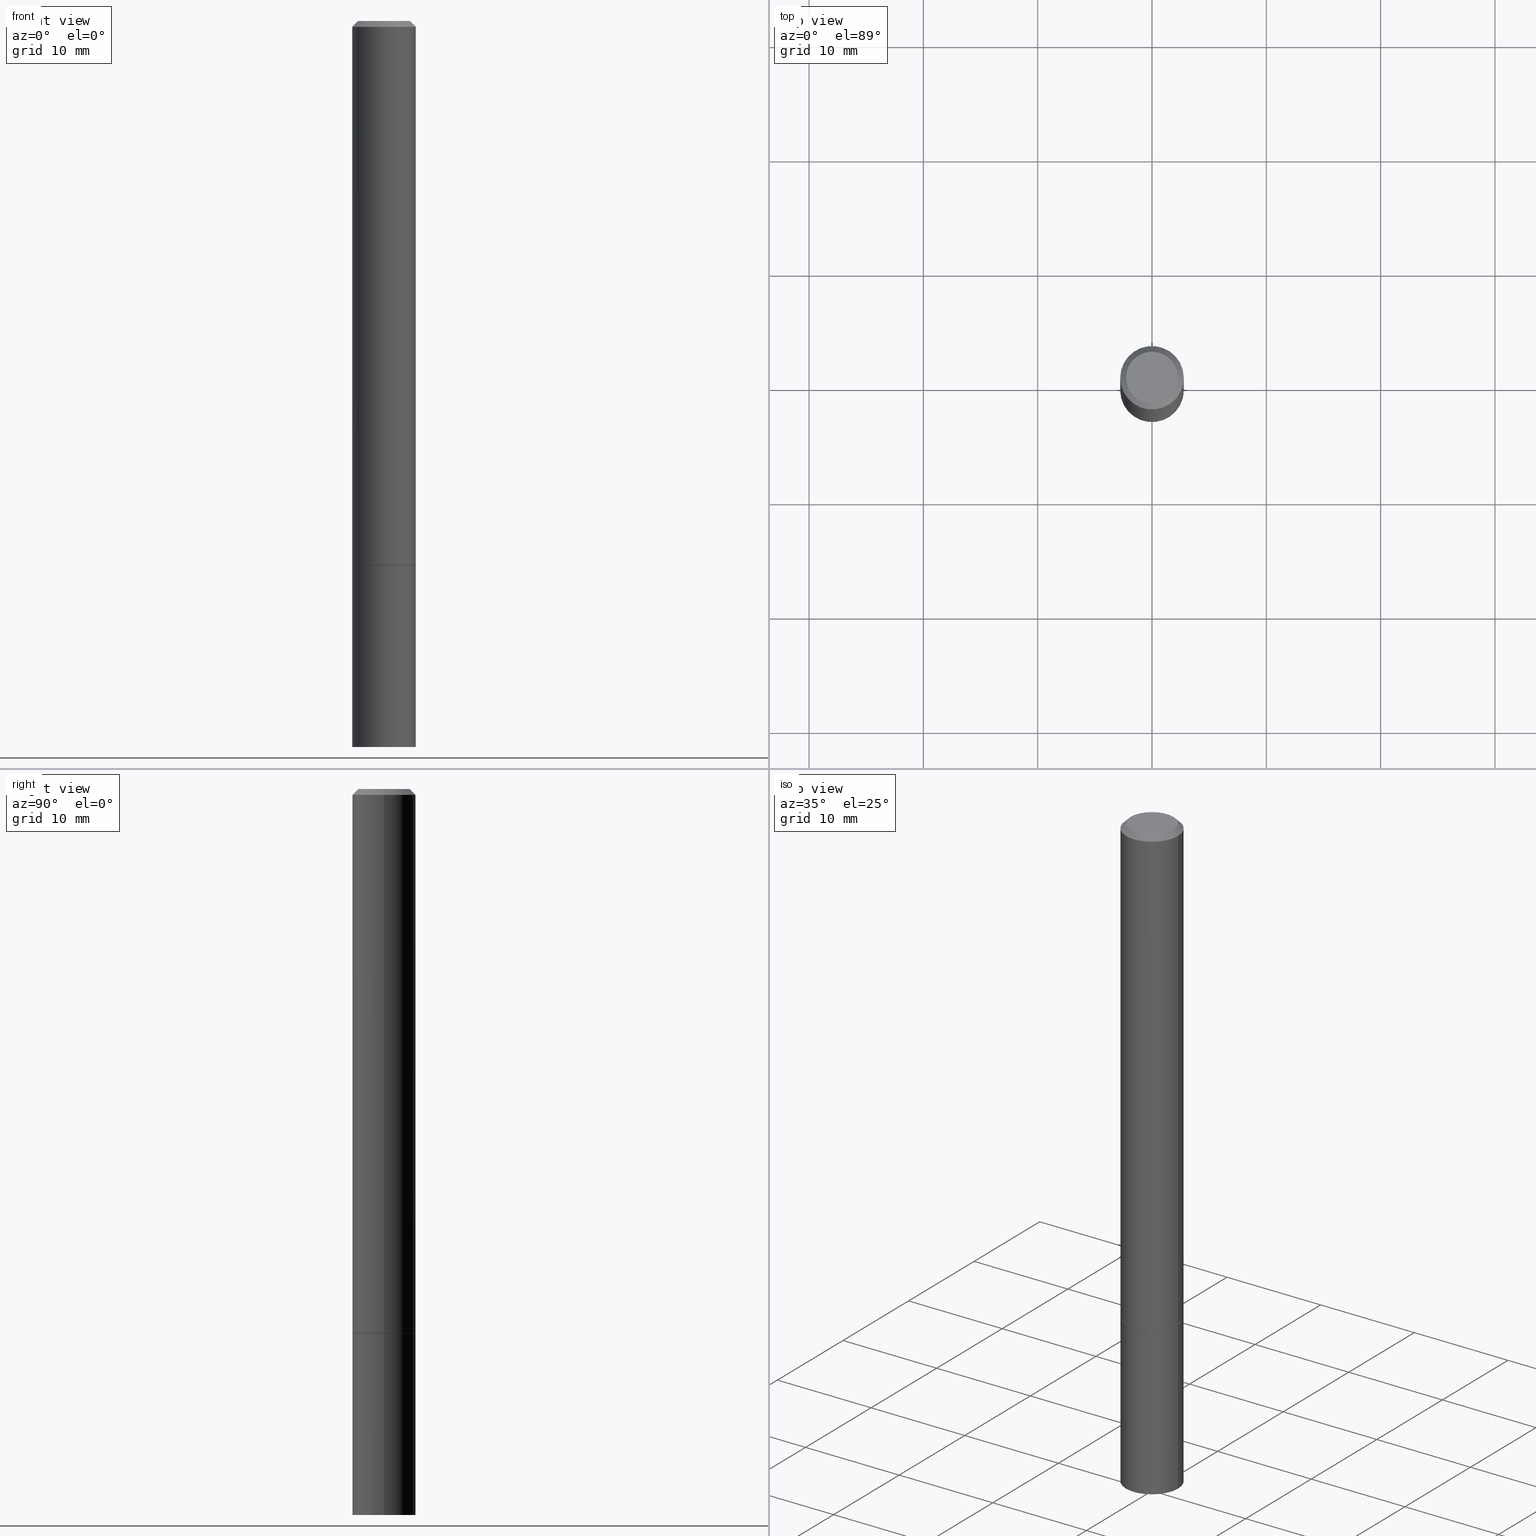
[diagram: canonical four-view strip — front | top / right | iso, engineering-drawing reading convention]
A machine part, canonical four-view strip (front | top / right | iso — engineering-drawing reading convention). The complete STEP part file that produces these views, byte-faithful:
ISO-10303-21;
HEADER;
FILE_DESCRIPTION (( 'STEP AP203' ),
    '1' );
FILE_NAME ('39027.STEP',
    '2023-03-21T20:44:31',
    ( '' ),
    ( '' ),
    'SwSTEP 2.0',
    'SolidWorks 2022',
    '' );
FILE_SCHEMA (( 'CONFIG_CONTROL_DESIGN' ));
ENDSEC;

DATA;
#1 = DIRECTION ( 'NONE',  ( 2.438088387897960049E-29, -3.491481338843145188E-15, -1.000000000000000000 ) ) ;
#2 = ORIENTED_EDGE ( 'NONE', *, *, #109, .F. ) ;
#3 = EDGE_LOOP ( 'NONE', ( #303, #199, #153, #222 ) ) ;
#4 = ORIENTED_EDGE ( 'NONE', *, *, #80, .F. ) ;
#5 = PLANE ( 'NONE',  #42 ) ;
#6 = DATE_TIME_ROLE ( 'creation_date' ) ;
#7 = DIRECTION ( 'NONE',  ( -1.000000000000000000, 6.982962677686265922E-15, -4.876176775795935793E-29 ) ) ;
#8 = DIRECTION ( 'NONE',  ( 0.000000000000000000, 0.000000000000000000, 1.000000000000000000 ) ) ;
#9 = ORIENTED_EDGE ( 'NONE', *, *, #284, .F. ) ;
#10 = DIRECTION ( 'NONE',  ( -2.445468806185136597E-29, 3.491481338843145583E-15, 1.000000000000000000 ) ) ;
#11 = SECURITY_CLASSIFICATION_LEVEL ( 'unclassified' ) ;
#12 = VERTEX_POINT ( 'NONE', #28 ) ;
#13 = PRODUCT_DEFINITION ( 'UNKNOWN', '', #187, #181 ) ;
#14 = DATE_AND_TIME ( #73, #291 ) ;
#15 = CARTESIAN_POINT ( 'NONE',  ( -0.1093999999999999972, -2.529099074962906760E-15, -1.874000000000000110 ) ) ;
#16 = COORDINATED_UNIVERSAL_TIME_OFFSET ( 5, 0, .BEHIND. ) ;
#17 = CARTESIAN_POINT ( 'NONE',  ( 6.113672015462842613E-29, -8.728703347107864943E-15, -2.500000000000000000 ) ) ;
#18 = AXIS2_PLACEMENT_3D ( 'NONE', #233, #259, #97 ) ;
#19 = EDGE_CURVE ( 'NONE', #190, #372, #164, .T. ) ;
#20 = CARTESIAN_POINT ( 'NONE',  ( 0.1093999999999999695, -9.479241828064070897E-15, -2.500000000000000000 ) ) ;
#21 = PRODUCT ( '39027', '39027', '', ( #256 ) ) ;
#22 = CARTESIAN_POINT ( 'NONE',  ( 4.582808542790945516E-29, -6.543036028992054911E-15, -1.874000000000000110 ) ) ;
#23 = ADVANCED_FACE ( 'NONE', ( #280 ), #173, .F. ) ;
#24 = AXIS2_PLACEMENT_3D ( 'NONE', #212, #138, #55 ) ;
#25 = DIRECTION ( 'NONE',  ( 0.9986295347545742773, -7.033825938271997912E-15, -0.05233595624293643084 ) ) ;
#26 = DIRECTION ( 'NONE',  ( 2.438088387897960049E-29, -3.491481338843145188E-15, -1.000000000000000000 ) ) ;
#27 = EDGE_CURVE ( 'NONE', #190, #116, #317, .T. ) ;
#28 = CARTESIAN_POINT ( 'NONE',  ( -0.1083999999999999964, -5.771000730418727335E-15, -1.875000000000000000 ) ) ;
#29 = ORIENTED_EDGE ( 'NONE', *, *, #34, .T. ) ;
#30 = EDGE_LOOP ( 'NONE', ( #69, #9, #62, #113 ) ) ;
#31 = VERTEX_POINT ( 'NONE', #309 ) ;
#32 = FACE_OUTER_BOUND ( 'NONE', #151, .T. ) ;
#33 = ORIENTED_EDGE ( 'NONE', *, *, #247, .T. ) ;
#34 = EDGE_CURVE ( 'NONE', #116, #365, #91, .T. ) ;
#35 = AXIS2_PLACEMENT_3D ( 'NONE', #339, #158, #119 ) ;
#36 = DIRECTION ( 'NONE',  ( 1.000000000000000000, -6.982962677686266711E-15, 4.876176775795935793E-29 ) ) ;
#37 = DIRECTION ( 'NONE',  ( 1.000000000000000000, -6.982962677686269866E-15, 0.000000000000000000 ) ) ;
#38 = ORIENTED_EDGE ( 'NONE', *, *, #115, .F. ) ;
#39 = DIRECTION ( 'NONE',  ( -0.7071067811865232589, 7.493145998870265808E-15, 0.7071067811865715536 ) ) ;
#40 = CC_DESIGN_PERSON_AND_ORGANIZATION_ASSIGNMENT ( #47, #228, ( #187 ) ) ;
#41 = APPROVAL_DATE_TIME ( #260, #198 ) ;
#42 = AXIS2_PLACEMENT_3D ( 'NONE', #246, #1, #7 ) ;
#43 = CARTESIAN_POINT ( 'NONE',  ( 0.000000000000000000, 0.000000000000000000, 0.000000000000000000 ) ) ;
#44 = CONICAL_SURFACE ( 'NONE', #54, 751.2258538476739886, 1.518436449235074148 ) ;
#45 = DATE_AND_TIME ( #348, #235 ) ;
#46 = DIRECTION ( 'NONE',  ( 1.000000000000000000, -6.982962677686269866E-15, 0.000000000000000000 ) ) ;
#47 = PERSON_AND_ORGANIZATION ( #88, #114 ) ;
#48 = CARTESIAN_POINT ( 'NONE',  ( 0.1093999999999997752, -8.203681077330669845E-16, -0.02000000000000002470 ) ) ;
#49 = CC_DESIGN_DATE_AND_TIME_ASSIGNMENT ( #14, #204, ( #330 ) ) ;
#50 = CARTESIAN_POINT ( 'NONE',  ( 0.08939999999999979907, -7.168483143669202998E-16, 4.689111625122773935E-30 ) ) ;
#51 = DIRECTION ( 'NONE',  ( 1.000000000000000000, -6.982962677686265922E-15, 4.876176775795935793E-29 ) ) ;
#52 = ADVANCED_FACE ( 'NONE', ( #87 ), #224, .T. ) ;
#53 = VECTOR ( 'NONE', #172, 39.37007874015748143 ) ;
#54 = AXIS2_PLACEMENT_3D ( 'NONE', #170, #209, #163 ) ;
#55 = DIRECTION ( 'NONE',  ( 1.000000000000000000, -6.982962677686268288E-15, 0.000000000000000000 ) ) ;
#56 = AXIS2_PLACEMENT_3D ( 'NONE', #205, #293, #298 ) ;
#57 = CC_DESIGN_APPROVAL ( #198, ( #187 ) ) ;
#58 = EDGE_LOOP ( 'NONE', ( #278, #378 ) ) ;
#59 = APPLICATION_CONTEXT ( 'configuration controlled 3d designs of mechanical parts and assemblies' ) ;
#60 = ORIENTED_EDGE ( 'NONE', *, *, #34, .F. ) ;
#61 = CC_DESIGN_PERSON_AND_ORGANIZATION_ASSIGNMENT ( #128, #281, ( #330 ) ) ;
#62 = ORIENTED_EDGE ( 'NONE', *, *, #80, .T. ) ;
#63 = FACE_OUTER_BOUND ( 'NONE', #110, .T. ) ;
#64 = ORIENTED_EDGE ( 'NONE', *, *, #82, .F. ) ;
#65 = CIRCLE ( 'NONE', #24, 0.1083999999999999964 ) ;
#66 = CONICAL_SURFACE ( 'NONE', #180, 0.1083999999999999964, 0.7853981633974141952 ) ;
#67 = DIRECTION ( 'NONE',  ( -2.445468806185136597E-29, 3.491481338843145583E-15, 1.000000000000000000 ) ) ;
#68 = SHAPE_DEFINITION_REPRESENTATION ( #328, #106 ) ;
#69 = ORIENTED_EDGE ( 'NONE', *, *, #157, .F. ) ;
#70 = EDGE_CURVE ( 'NONE', #365, #116, #321, .T. ) ;
#71 = CARTESIAN_POINT ( 'NONE',  ( -0.1083999999999999964, -5.776299184766949737E-15, -1.875000000000000000 ) ) ;
#72 = FACE_OUTER_BOUND ( 'NONE', #125, .T. ) ;
#73 = CALENDAR_DATE ( 2023, 21, 3 ) ;
#74 = AXIS2_PLACEMENT_3D ( 'NONE', #210, #331, #79 ) ;
#75 = APPROVAL_ROLE ( '' ) ;
#76 = APPLICATION_CONTEXT ( 'configuration controlled 3d designs of mechanical parts and assemblies' ) ;
#77 = ADVANCED_FACE ( 'NONE', ( #283 ), #5, .F. ) ;
#78 = EDGE_CURVE ( 'NONE', #86, #219, #305, .T. ) ;
#79 = DIRECTION ( 'NONE',  ( 1.000000000000000000, -6.982962677686267499E-15, 4.876176775795935232E-29 ) ) ;
#80 = EDGE_CURVE ( 'NONE', #338, #219, #146, .T. ) ;
#81 = DIRECTION ( 'NONE',  ( 1.000000000000000000, -6.982962677686268288E-15, 0.000000000000000000 ) ) ;
#82 = EDGE_CURVE ( 'NONE', #31, #190, #185, .T. ) ;
#83 = CARTESIAN_POINT ( 'NONE',  ( 4.585254011597131119E-29, -6.546527510330898707E-15, -1.875000000000000000 ) ) ;
#84 = VECTOR ( 'NONE', #295, 39.37007874015748143 ) ;
#85 = CARTESIAN_POINT ( 'NONE',  ( 7.639361169389233258E-16, 0.1093999999999934608, -1.875000000000000444 ) ) ;
#86 = VERTEX_POINT ( 'NONE', #239 ) ;
#87 = FACE_OUTER_BOUND ( 'NONE', #30, .T. ) ;
#88 = PERSON ( 'UNSPECIFIED', 'UNSPECIFIED', 'UNSPECIFIED', ('UNSPECIFIED'), ('UNSPECIFIED'), ('UNSPECIFIED') ) ;
#89 = ORIENTED_EDGE ( 'NONE', *, *, #374, .F. ) ;
#90 = DATE_AND_TIME ( #377, #313 ) ;
#91 = CIRCLE ( 'NONE', #268, 0.1093999999999999972 ) ;
#92 = CARTESIAN_POINT ( 'NONE',  ( 0.1093999999999999001, -7.639361169388768816E-16, 5.334537392720749004E-30 ) ) ;
#93 = PERSON_AND_ORGANIZATION_ROLE ( 'design_owner' ) ;
#94 = DIRECTION ( 'NONE',  ( 1.000000000000000000, -6.982962677686268288E-15, 0.000000000000000000 ) ) ;
#95 = DIRECTION ( 'NONE',  ( 1.000000000000000000, -6.982962677686266711E-15, 4.876176775795935793E-29 ) ) ;
#96 = PERSON_AND_ORGANIZATION_ROLE ( 'creator' ) ;
#97 = DIRECTION ( 'NONE',  ( 1.000000000000000000, -6.982962677686266711E-15, 4.876176775795935793E-29 ) ) ;
#98 = EDGE_CURVE ( 'NONE', #149, #219, #135, .T. ) ;
#99 = APPROVAL_STATUS ( 'not_yet_approved' ) ;
#100 = CYLINDRICAL_SURFACE ( 'NONE', #18, 0.1093999999999999972 ) ;
#101 = CARTESIAN_POINT ( 'NONE',  ( -0.1093999999999997752, 6.941064901620129917E-16, -0.02000000000000002470 ) ) ;
#102 = AXIS2_PLACEMENT_3D ( 'NONE', #355, #383, #81 ) ;
#103 = AXIS2_PLACEMENT_3D ( 'NONE', #121, #67, #269 ) ;
#104 = AXIS2_PLACEMENT_3D ( 'NONE', #310, #150, #36 ) ;
#105 = ADVANCED_FACE ( 'NONE', ( #72 ), #130, .T. ) ;
#106 = ADVANCED_BREP_SHAPE_REPRESENTATION ( '39027', ( #311, #178, #276 ), #337 ) ;
#107 = LINE ( 'NONE', #137, #362 ) ;
#108 = AXIS2_PLACEMENT_3D ( 'NONE', #254, #202, #292 ) ;
#109 = EDGE_CURVE ( 'NONE', #368, #12, #186, .T. ) ;
#110 = EDGE_LOOP ( 'NONE', ( #29, #279 ) ) ;
#111 = CARTESIAN_POINT ( 'NONE',  ( -0.1093999999999999972, -6.860281675797831847E-15, -1.875000000000000000 ) ) ;
#112 = CARTESIAN_POINT ( 'NONE',  ( 2.905236764192702358E-20, -8.708685249406429483E-15, -2.494266588946436158 ) ) ;
#113 = ORIENTED_EDGE ( 'NONE', *, *, #332, .T. ) ;
#114 = ORGANIZATION ( 'UNSPECIFIED', 'UNSPECIFIED', '' ) ;
#115 = EDGE_CURVE ( 'NONE', #154, #86, #323, .T. ) ;
#116 = VERTEX_POINT ( 'NONE', #382 ) ;
#117 = CARTESIAN_POINT ( 'NONE',  ( 6.113672015462842613E-29, -8.728703347107864943E-15, -2.500000000000000000 ) ) ;
#118 = ORIENTED_EDGE ( 'NONE', *, *, #115, .T. ) ;
#119 = DIRECTION ( 'NONE',  ( -1.000000000000000000, 6.982962677686266711E-15, 0.000000000000000000 ) ) ;
#120 = VERTEX_POINT ( 'NONE', #50 ) ;
#121 = CARTESIAN_POINT ( 'NONE',  ( 4.585254011597131119E-29, -6.546527510330898707E-15, -1.875000000000000000 ) ) ;
#122 = CALENDAR_DATE ( 2023, 21, 3 ) ;
#123 = ORIENTED_EDGE ( 'NONE', *, *, #182, .F. ) ;
#124 = VECTOR ( 'NONE', #214, 39.37007874015748143 ) ;
#125 = EDGE_LOOP ( 'NONE', ( #218, #249, #118, #308 ) ) ;
#126 = APPROVAL_PERSON_ORGANIZATION ( #169, #299, #314 ) ;
#127 = CARTESIAN_POINT ( 'NONE',  ( -2.905236751993399867E-20, -8.708685249406429483E-15, -2.494266588946436158 ) ) ;
#128 = PERSON_AND_ORGANIZATION ( #88, #114 ) ;
#129 = ORIENTED_EDGE ( 'NONE', *, *, #27, .T. ) ;
#130 = CYLINDRICAL_SURFACE ( 'NONE', #357, 0.1093999999999999001 ) ;
#131 = CC_DESIGN_DATE_AND_TIME_ASSIGNMENT ( #45, #6, ( #13 ) ) ;
#132 = DIRECTION ( 'NONE',  ( -2.445468806185136597E-29, 3.491481338843145583E-15, 1.000000000000000000 ) ) ;
#133 = ADVANCED_FACE ( 'NONE', ( #261 ), #257, .T. ) ;
#134 = VECTOR ( 'NONE', #168, 39.37007874015748143 ) ;
#135 = LINE ( 'NONE', #250, #215 ) ;
#136 = EDGE_CURVE ( 'NONE', #372, #190, #232, .T. ) ;
#137 = CARTESIAN_POINT ( 'NONE',  ( 0.1083999999999999964, -7.303480664592089476E-15, -1.875000000000000000 ) ) ;
#138 = DIRECTION ( 'NONE',  ( -2.445468806185136597E-29, 3.491481338843145583E-15, 1.000000000000000000 ) ) ;
#139 = AXIS2_PLACEMENT_3D ( 'NONE', #296, #346, #354 ) ;
#140 = APPROVAL_PERSON_ORGANIZATION ( #294, #345, #75 ) ;
#141 = EDGE_CURVE ( 'NONE', #31, #372, #325, .T. ) ;
#142 =( LENGTH_UNIT ( ) NAMED_UNIT ( * ) SI_UNIT ( $, .METRE. ) );
#143 = DIMENSIONAL_EXPONENTS ( 1.000000000000000000, 0.000000000000000000, 0.000000000000000000, 0.000000000000000000, 0.000000000000000000, 0.000000000000000000, 0.000000000000000000 ) ;
#144 = ADVANCED_FACE ( 'NONE', ( #376 ), #100, .T. ) ;
#145 = CC_DESIGN_APPROVAL ( #299, ( #330 ) ) ;
#146 = LINE ( 'NONE', #333, #124 ) ;
#147 = DIRECTION ( 'NONE',  ( -2.445468806185136877E-29, 3.491481338843145188E-15, 1.000000000000000000 ) ) ;
#148 = ORIENTED_EDGE ( 'NONE', *, *, #136, .T. ) ;
#149 = VERTEX_POINT ( 'NONE', #15 ) ;
#150 = DIRECTION ( 'NONE',  ( -2.445468806185136597E-29, 3.491481338843145583E-15, 1.000000000000000000 ) ) ;
#151 = EDGE_LOOP ( 'NONE', ( #213, #196, #60, #273 ) ) ;
#152 = CIRCLE ( 'NONE', #297, 0.1093999999999997752 ) ;
#153 = ORIENTED_EDGE ( 'NONE', *, *, #379, .F. ) ;
#154 = VERTEX_POINT ( 'NONE', #327 ) ;
#155 = APPLICATION_PROTOCOL_DEFINITION ( 'international standard', 'config_control_design', 1994, #76 ) ;
#156 = ORIENTED_EDGE ( 'NONE', *, *, #70, .F. ) ;
#157 = EDGE_CURVE ( 'NONE', #120, #86, #200, .T. ) ;
#158 = DIRECTION ( 'NONE',  ( 2.445468806185136597E-29, -3.491481338843145583E-15, -1.000000000000000000 ) ) ;
#159 = APPLICATION_PROTOCOL_DEFINITION ( 'international standard', 'config_control_design', 1994, #59 ) ;
#160 = ORIENTED_EDGE ( 'NONE', *, *, #141, .F. ) ;
#161 = CARTESIAN_POINT ( 'NONE',  ( 4.582808542790945516E-29, -6.543036028992054911E-15, -1.874000000000000110 ) ) ;
#162 = DIRECTION ( 'NONE',  ( 1.000000000000000000, 0.000000000000000000, 0.000000000000000000 ) ) ;
#163 = DIRECTION ( 'NONE',  ( -1.000000000000000000, 6.982962677686266711E-15, 0.000000000000000000 ) ) ;
#164 = CIRCLE ( 'NONE', #253, 0.1093999999999999972 ) ;
#165 = VECTOR ( 'NONE', #267, 39.37007874015748143 ) ;
#166 = COORDINATED_UNIVERSAL_TIME_OFFSET ( 5, 0, .BEHIND. ) ;
#167 = EDGE_CURVE ( 'NONE', #120, #338, #207, .T. ) ;
#168 = DIRECTION ( 'NONE',  ( -0.9986295347545742773, 6.790662755453668466E-15, -0.05233595624293643084 ) ) ;
#169 = PERSON_AND_ORGANIZATION ( #88, #114 ) ;
#170 = CARTESIAN_POINT ( 'NONE',  ( 1.023779505936860528E-27, -1.461685804794515337E-13, -41.86434532910391937 ) ) ;
#171 = EDGE_CURVE ( 'NONE', #12, #149, #174, .T. ) ;
#172 = DIRECTION ( 'NONE',  ( 0.7071067811865466846, -7.319954787623252890E-15, -0.7071067811865483499 ) ) ;
#173 = CONICAL_SURFACE ( 'NONE', #301, 751.2258538476739886, 1.518436449235074148 ) ;
#174 = LINE ( 'NONE', #71, #329 ) ;
#175 = CC_DESIGN_PERSON_AND_ORGANIZATION_ASSIGNMENT ( #320, #93, ( #21 ) ) ;
#176 = CIRCLE ( 'NONE', #241, 0.1093999999999999972 ) ;
#177 = CARTESIAN_POINT ( 'NONE',  ( 4.585254011597131119E-29, -6.546527510330898707E-15, -1.875000000000000000 ) ) ;
#178 = MANIFOLD_SOLID_BREP ( 'Body-Move/Copy2[2]', #351 ) ;
#179 = CARTESIAN_POINT ( 'NONE',  ( -0.1093999999999999972, 7.773337529215495838E-16, -5.381314988738867416E-30 ) ) ;
#180 = AXIS2_PLACEMENT_3D ( 'NONE', #370, #242, #94 ) ;
#181 = DESIGN_CONTEXT ( 'detailed design', #76, 'design' ) ;
#182 = EDGE_CURVE ( 'NONE', #149, #154, #288, .T. ) ;
#183 = UNCERTAINTY_MEASURE_WITH_UNIT (LENGTH_MEASURE( 1.000000000000000082E-05 ), #364, 'distance_accuracy_value', 'NONE');
#184 = EDGE_LOOP ( 'NONE', ( #312, #191, #33, #123 ) ) ;
#185 = LINE ( 'NONE', #112, #381 ) ;
#186 = CIRCLE ( 'NONE', #56, 0.1083999999999999964 ) ;
#187 = PRODUCT_DEFINITION_FORMATION_WITH_SPECIFIED_SOURCE ( 'ANY', '', #21, .NOT_KNOWN. ) ;
#188 = ORIENTED_EDGE ( 'NONE', *, *, #304, .F. ) ;
#189 = ORIENTED_EDGE ( 'NONE', *, *, #78, .T. ) ;
#190 = VERTEX_POINT ( 'NONE', #20 ) ;
#191 = ORIENTED_EDGE ( 'NONE', *, *, #304, .T. ) ;
#192 = DIRECTION ( 'NONE',  ( -1.000000000000000000, 6.982962677686265922E-15, -4.876176775795935793E-29 ) ) ;
#193 = EDGE_LOOP ( 'NONE', ( #89, #148, #129, #156 ) ) ;
#194 = DIRECTION ( 'NONE',  ( 1.000000000000000000, -6.982962677686269866E-15, 0.000000000000000000 ) ) ;
#195 = PERSON_AND_ORGANIZATION ( #88, #114 ) ;
#196 = ORIENTED_EDGE ( 'NONE', *, *, #374, .T. ) ;
#197 = CC_DESIGN_SECURITY_CLASSIFICATION ( #330, ( #187 ) ) ;
#198 = APPROVAL ( #324, 'UNSPECIFIED' ) ;
#199 = ORIENTED_EDGE ( 'NONE', *, *, #171, .T. ) ;
#200 = LINE ( 'NONE', #48, #53 ) ;
#201 =( NAMED_UNIT ( * ) PLANE_ANGLE_UNIT ( ) SI_UNIT ( $, .RADIAN. ) );
#202 = DIRECTION ( 'NONE',  ( 2.445468806185136597E-29, -3.491481338843145583E-15, -1.000000000000000000 ) ) ;
#203 = DIRECTION ( 'NONE',  ( 1.000000000000000000, -6.982962677686266711E-15, 4.876176775795935793E-29 ) ) ;
#204 = DATE_TIME_ROLE ( 'classification_date' ) ;
#205 = CARTESIAN_POINT ( 'NONE',  ( 4.585254011597131119E-29, -6.546527510330898707E-15, -1.875000000000000000 ) ) ;
#206 = COORDINATED_UNIVERSAL_TIME_OFFSET ( 5, 0, .BEHIND. ) ;
#207 = CIRCLE ( 'NONE', #139, 0.08939999999999979907 ) ;
#208 = LOCAL_TIME ( 16, 44, 31.00000000000000000, #16 ) ;
#209 = DIRECTION ( 'NONE',  ( 2.445468806185136597E-29, -3.491481338843145583E-15, -1.000000000000000000 ) ) ;
#210 = CARTESIAN_POINT ( 'NONE',  ( 0.000000000000000000, 0.000000000000000000, 0.000000000000000000 ) ) ;
#211 = LINE ( 'NONE', #179, #165 ) ;
#212 = CARTESIAN_POINT ( 'NONE',  ( 4.585254011597131119E-29, -6.546527510330898707E-15, -1.875000000000000000 ) ) ;
#213 = ORIENTED_EDGE ( 'NONE', *, *, #19, .T. ) ;
#214 = DIRECTION ( 'NONE',  ( -0.7071067811865466846, 2.468850131082247989E-15, -0.7071067811865483499 ) ) ;
#215 = VECTOR ( 'NONE', #231, 39.37007874015748143 ) ;
#216 = AXIS2_PLACEMENT_3D ( 'NONE', #85, #26, #192 ) ;
#217 = DIRECTION ( 'NONE',  ( 1.000000000000000000, -6.982962677686269866E-15, 0.000000000000000000 ) ) ;
#218 = ORIENTED_EDGE ( 'NONE', *, *, #98, .F. ) ;
#219 = VERTEX_POINT ( 'NONE', #101 ) ;
#220 = DIRECTION ( 'NONE',  ( 2.445468806185136597E-29, -3.491481338843145583E-15, -1.000000000000000000 ) ) ;
#221 = ADVANCED_FACE ( 'NONE', ( #387 ), #385, .F. ) ;
#222 = ORIENTED_EDGE ( 'NONE', *, *, #247, .F. ) ;
#223 = CALENDAR_DATE ( 2023, 21, 3 ) ;
#224 = CONICAL_SURFACE ( 'NONE', #35, 0.1093999999999997752, 0.7853981633974471688 ) ;
#225 = DIRECTION ( 'NONE',  ( -2.445468806185136597E-29, 3.491481338843145583E-15, 1.000000000000000000 ) ) ;
#226 = PERSON_AND_ORGANIZATION_ROLE ( 'design_supplier' ) ;
#227 = ORIENTED_EDGE ( 'NONE', *, *, #379, .T. ) ;
#228 = PERSON_AND_ORGANIZATION_ROLE ( 'creator' ) ;
#229 = ORIENTED_EDGE ( 'NONE', *, *, #157, .T. ) ;
#230 = DIRECTION ( 'NONE',  ( -2.445468806185136597E-29, 3.491481338843145583E-15, 1.000000000000000000 ) ) ;
#231 = DIRECTION ( 'NONE',  ( -2.445468806185136877E-29, 3.491481338843145188E-15, 1.000000000000000000 ) ) ;
#232 = CIRCLE ( 'NONE', #341, 0.1093999999999999972 ) ;
#233 = CARTESIAN_POINT ( 'NONE',  ( 0.000000000000000000, 0.000000000000000000, 0.000000000000000000 ) ) ;
#234 = AXIS2_PLACEMENT_3D ( 'NONE', #336, #359, #306 ) ;
#235 = LOCAL_TIME ( 16, 44, 31.00000000000000000, #285 ) ;
#236 = CC_DESIGN_PERSON_AND_ORGANIZATION_ASSIGNMENT ( #347, #96, ( #13 ) ) ;
#237 = DIRECTION ( 'NONE',  ( 0.7071067811865232589, -2.468850131082003836E-15, 0.7071067811865715536 ) ) ;
#238 = CARTESIAN_POINT ( 'NONE',  ( 0.1083999999999999964, -7.303480664592089476E-15, -1.875000000000000000 ) ) ;
#239 = CARTESIAN_POINT ( 'NONE',  ( 0.1093999999999997752, -8.203681077330669845E-16, -0.02000000000000002470 ) ) ;
#240 = CONICAL_SURFACE ( 'NONE', #102, 0.1083999999999999964, 0.7853981633974141952 ) ;
#241 = AXIS2_PLACEMENT_3D ( 'NONE', #22, #386, #217 ) ;
#242 = DIRECTION ( 'NONE',  ( -2.445468806185136597E-29, 3.491481338843145583E-15, 1.000000000000000000 ) ) ;
#243 = ORIENTED_EDGE ( 'NONE', *, *, #167, .F. ) ;
#244 = EDGE_LOOP ( 'NONE', ( #243, #229, #189, #4 ) ) ;
#245 = DIRECTION ( 'NONE',  ( -2.445468806185136597E-29, 3.491481338843145583E-15, 1.000000000000000000 ) ) ;
#246 = CARTESIAN_POINT ( 'NONE',  ( 6.242768633851507782E-16, 0.08939999999999979907, -3.121384316925765724E-16 ) ) ;
#247 = EDGE_CURVE ( 'NONE', #368, #154, #107, .T. ) ;
#248 = APPROVAL_ROLE ( '' ) ;
#249 = ORIENTED_EDGE ( 'NONE', *, *, #182, .T. ) ;
#250 = CARTESIAN_POINT ( 'NONE',  ( -0.1093999999999999001, 7.773337529215488935E-16, -5.381314988738861811E-30 ) ) ;
#251 = APPROVAL_DATE_TIME ( #90, #345 ) ;
#252 = FACE_OUTER_BOUND ( 'NONE', #184, .T. ) ;
#253 = AXIS2_PLACEMENT_3D ( 'NONE', #117, #245, #194 ) ;
#254 = CARTESIAN_POINT ( 'NONE',  ( 4.890937612370279289E-31, -6.982962677686299005E-17, -0.02000000000000002470 ) ) ;
#255 = DIRECTION ( 'NONE',  ( 1.000000000000000000, -6.982962677686269866E-15, 0.000000000000000000 ) ) ;
#256 = MECHANICAL_CONTEXT ( 'NONE', #59, 'mechanical' ) ;
#257 = CYLINDRICAL_SURFACE ( 'NONE', #290, 0.1093999999999999001 ) ;
#258 = APPROVAL_STATUS ( 'not_yet_approved' ) ;
#259 = DIRECTION ( 'NONE',  ( -2.445468806185136597E-29, 3.491481338843145583E-15, 1.000000000000000000 ) ) ;
#260 = DATE_AND_TIME ( #122, #208 ) ;
#261 = FACE_OUTER_BOUND ( 'NONE', #334, .T. ) ;
#262 = ADVANCED_FACE ( 'NONE', ( #358 ), #240, .T. ) ;
#263 = ORIENTED_EDGE ( 'NONE', *, *, #136, .F. ) ;
#264 = CONICAL_SURFACE ( 'NONE', #108, 0.1093999999999997752, 0.7853981633974471688 ) ;
#265 = FACE_OUTER_BOUND ( 'NONE', #244, .T. ) ;
#266 = DIRECTION ( 'NONE',  ( -2.438088387897960049E-29, 3.491481338843145188E-15, 1.000000000000000000 ) ) ;
#267 = DIRECTION ( 'NONE',  ( -2.445468806185136877E-29, 3.491481338843145188E-15, 1.000000000000000000 ) ) ;
#268 = AXIS2_PLACEMENT_3D ( 'NONE', #83, #274, #37 ) ;
#269 = DIRECTION ( 'NONE',  ( 1.000000000000000000, -6.982962677686269866E-15, 0.000000000000000000 ) ) ;
#270 = PLANE ( 'NONE',  #216 ) ;
#271 = ORIENTED_EDGE ( 'NONE', *, *, #19, .F. ) ;
#272 = CC_DESIGN_PERSON_AND_ORGANIZATION_ASSIGNMENT ( #195, #226, ( #187 ) ) ;
#273 = ORIENTED_EDGE ( 'NONE', *, *, #27, .F. ) ;
#274 = DIRECTION ( 'NONE',  ( -2.445468806185136597E-29, 3.491481338843145583E-15, 1.000000000000000000 ) ) ;
#275 = CIRCLE ( 'NONE', #74, 0.08939999999999979907 ) ;
#276 = AXIS2_PLACEMENT_3D ( 'NONE', #319, #8, #162 ) ;
#277 = LENGTH_MEASURE_WITH_UNIT ( LENGTH_MEASURE( 0.02539999999999999897 ), #142 );
#278 = ORIENTED_EDGE ( 'NONE', *, *, #284, .T. ) ;
#279 = ORIENTED_EDGE ( 'NONE', *, *, #70, .T. ) ;
#280 = FACE_OUTER_BOUND ( 'NONE', #289, .T. ) ;
#281 = PERSON_AND_ORGANIZATION_ROLE ( 'classification_officer' ) ;
#282 = ORIENTED_EDGE ( 'NONE', *, *, #78, .F. ) ;
#283 = FACE_OUTER_BOUND ( 'NONE', #58, .T. ) ;
#284 = EDGE_CURVE ( 'NONE', #338, #120, #275, .T. ) ;
#285 = COORDINATED_UNIVERSAL_TIME_OFFSET ( 5, 0, .BEHIND. ) ;
#286 = PERSON_AND_ORGANIZATION ( #88, #114 ) ;
#287 = CARTESIAN_POINT ( 'NONE',  ( -0.1093999999999999695, -7.964767230168986582E-15, -2.500000000000000000 ) ) ;
#288 = CIRCLE ( 'NONE', #352, 0.1093999999999999972 ) ;
#289 = EDGE_LOOP ( 'NONE', ( #64, #316, #271 ) ) ;
#290 = AXIS2_PLACEMENT_3D ( 'NONE', #43, #225, #95 ) ;
#291 = LOCAL_TIME ( 16, 44, 31.00000000000000000, #380 ) ;
#292 = DIRECTION ( 'NONE',  ( -1.000000000000000000, 6.982962677686266711E-15, 0.000000000000000000 ) ) ;
#293 = DIRECTION ( 'NONE',  ( -2.445468806185136597E-29, 3.491481338843145583E-15, 1.000000000000000000 ) ) ;
#294 = PERSON_AND_ORGANIZATION ( #88, #114 ) ;
#295 = DIRECTION ( 'NONE',  ( -2.445468806185136877E-29, 3.491481338843145188E-15, 1.000000000000000000 ) ) ;
#296 = CARTESIAN_POINT ( 'NONE',  ( 0.000000000000000000, 0.000000000000000000, 0.000000000000000000 ) ) ;
#297 = AXIS2_PLACEMENT_3D ( 'NONE', #375, #230, #349 ) ;
#298 = DIRECTION ( 'NONE',  ( 1.000000000000000000, -6.982962677686268288E-15, 0.000000000000000000 ) ) ;
#299 = APPROVAL ( #99, 'UNSPECIFIED' ) ;
#300 = CLOSED_SHELL ( 'NONE', ( #367, #371, #23, #144, #356 ) ) ;
#301 = AXIS2_PLACEMENT_3D ( 'NONE', #363, #220, #390 ) ;
#302 = APPROVAL_PERSON_ORGANIZATION ( #286, #198, #248 ) ;
#303 = ORIENTED_EDGE ( 'NONE', *, *, #109, .T. ) ;
#304 = EDGE_CURVE ( 'NONE', #12, #368, #65, .T. ) ;
#305 = CIRCLE ( 'NONE', #234, 0.1093999999999997752 ) ;
#306 = DIRECTION ( 'NONE',  ( 1.000000000000000000, -6.982962677686266711E-15, 0.000000000000000000 ) ) ;
#307 = CARTESIAN_POINT ( 'NONE',  ( -0.08939999999999979907, 6.591916767735819343E-16, -4.487804550905191468E-30 ) ) ;
#308 = ORIENTED_EDGE ( 'NONE', *, *, #332, .F. ) ;
#309 = CARTESIAN_POINT ( 'NONE',  ( 6.099630850418462986E-29, -8.708714301774010399E-15, -2.494266588946436158 ) ) ;
#310 = CARTESIAN_POINT ( 'NONE',  ( 0.000000000000000000, 0.000000000000000000, 0.000000000000000000 ) ) ;
#311 = MANIFOLD_SOLID_BREP ( 'Body-Move/Copy2[1]', #300 ) ;
#312 = ORIENTED_EDGE ( 'NONE', *, *, #171, .F. ) ;
#313 = LOCAL_TIME ( 16, 44, 31.00000000000000000, #206 ) ;
#314 = APPROVAL_ROLE ( '' ) ;
#315 = CYLINDRICAL_SURFACE ( 'NONE', #104, 0.1093999999999999972 ) ;
#316 = ORIENTED_EDGE ( 'NONE', *, *, #141, .T. ) ;
#317 = LINE ( 'NONE', #360, #384 ) ;
#318 = EDGE_LOOP ( 'NONE', ( #2, #188 ) ) ;
#319 = CARTESIAN_POINT ( 'NONE',  ( 0.000000000000000000, 0.000000000000000000, 0.000000000000000000 ) ) ;
#320 = PERSON_AND_ORGANIZATION ( #88, #114 ) ;
#321 = CIRCLE ( 'NONE', #103, 0.1093999999999999972 ) ;
#322 = LOCAL_TIME ( 16, 44, 31.00000000000000000, #166 ) ;
#323 = LINE ( 'NONE', #92, #84 ) ;
#324 = APPROVAL_STATUS ( 'not_yet_approved' ) ;
#325 = LINE ( 'NONE', #127, #134 ) ;
#326 = ADVANCED_FACE ( 'NONE', ( #265 ), #264, .T. ) ;
#327 = CARTESIAN_POINT ( 'NONE',  ( 0.1093999999999999972, -7.306972145930932483E-15, -1.874000000000000110 ) ) ;
#328 = PRODUCT_DEFINITION_SHAPE ( 'NONE', 'NONE',  #13 ) ;
#329 = VECTOR ( 'NONE', #39, 39.37007874015748854 ) ;
#330 = SECURITY_CLASSIFICATION ( '', '', #11 ) ;
#331 = DIRECTION ( 'NONE',  ( -2.445468806185136597E-29, 3.491481338843145583E-15, 1.000000000000000000 ) ) ;
#332 = EDGE_CURVE ( 'NONE', #219, #86, #152, .T. ) ;
#333 = CARTESIAN_POINT ( 'NONE',  ( -0.1093999999999997752, 6.941064901620129917E-16, -0.02000000000000002470 ) ) ;
#334 = EDGE_LOOP ( 'NONE', ( #227, #340, #282, #38 ) ) ;
#335 = ADVANCED_FACE ( 'NONE', ( #252 ), #66, .T. ) ;
#336 = CARTESIAN_POINT ( 'NONE',  ( 4.890937612370279289E-31, -6.982962677686299005E-17, -0.02000000000000002470 ) ) ;
#337 =( GEOMETRIC_REPRESENTATION_CONTEXT ( 3 ) GLOBAL_UNCERTAINTY_ASSIGNED_CONTEXT ( ( #183 ) ) GLOBAL_UNIT_ASSIGNED_CONTEXT ( ( #364, #201, #369 ) ) REPRESENTATION_CONTEXT ( 'NONE', 'WORKASPACE' ) );
#338 = VERTEX_POINT ( 'NONE', #307 ) ;
#339 = CARTESIAN_POINT ( 'NONE',  ( 4.890937612370279289E-31, -6.982962677686299005E-17, -0.02000000000000002470 ) ) ;
#340 = ORIENTED_EDGE ( 'NONE', *, *, #98, .T. ) ;
#341 = AXIS2_PLACEMENT_3D ( 'NONE', #17, #132, #46 ) ;
#342 = CC_DESIGN_APPROVAL ( #345, ( #13 ) ) ;
#343 = APPROVAL_DATE_TIME ( #366, #299 ) ;
#344 = EDGE_LOOP ( 'NONE', ( #160, #373, #263 ) ) ;
#345 = APPROVAL ( #258, 'UNSPECIFIED' ) ;
#346 = DIRECTION ( 'NONE',  ( -2.445468806185136597E-29, 3.491481338843145583E-15, 1.000000000000000000 ) ) ;
#347 = PERSON_AND_ORGANIZATION ( #88, #114 ) ;
#348 = CALENDAR_DATE ( 2023, 21, 3 ) ;
#349 = DIRECTION ( 'NONE',  ( 1.000000000000000000, -6.982962677686266711E-15, 0.000000000000000000 ) ) ;
#350 = CARTESIAN_POINT ( 'NONE',  ( 0.000000000000000000, 0.000000000000000000, 0.000000000000000000 ) ) ;
#351 = CLOSED_SHELL ( 'NONE', ( #262, #133, #326, #52, #105, #335, #221, #77 ) ) ;
#352 = AXIS2_PLACEMENT_3D ( 'NONE', #161, #10, #255 ) ;
#353 = DIRECTION ( 'NONE',  ( -2.445468806185136597E-29, 3.491481338843145583E-15, 1.000000000000000000 ) ) ;
#354 = DIRECTION ( 'NONE',  ( 1.000000000000000000, -6.982962677686267499E-15, 4.876176775795935232E-29 ) ) ;
#355 = CARTESIAN_POINT ( 'NONE',  ( 4.585254011597131119E-29, -6.546527510330898707E-15, -1.875000000000000000 ) ) ;
#356 = ADVANCED_FACE ( 'NONE', ( #63 ), #270, .F. ) ;
#357 = AXIS2_PLACEMENT_3D ( 'NONE', #350, #353, #203 ) ;
#358 = FACE_OUTER_BOUND ( 'NONE', #3, .T. ) ;
#359 = DIRECTION ( 'NONE',  ( -2.445468806185136597E-29, 3.491481338843145583E-15, 1.000000000000000000 ) ) ;
#360 = CARTESIAN_POINT ( 'NONE',  ( 0.1093999999999999972, -7.639361169388775718E-16, 5.334537392720753909E-30 ) ) ;
#361 = FACE_OUTER_BOUND ( 'NONE', #344, .T. ) ;
#362 = VECTOR ( 'NONE', #237, 39.37007874015748854 ) ;
#363 = CARTESIAN_POINT ( 'NONE',  ( 1.023779505936860528E-27, -1.461685804794515337E-13, -41.86434532910391937 ) ) ;
#364 =( CONVERSION_BASED_UNIT ( 'INCH', #277 ) LENGTH_UNIT ( ) NAMED_UNIT ( #143 ) );
#365 = VERTEX_POINT ( 'NONE', #111 ) ;
#366 = DATE_AND_TIME ( #223, #322 ) ;
#367 = ADVANCED_FACE ( 'NONE', ( #32 ), #315, .T. ) ;
#368 = VERTEX_POINT ( 'NONE', #238 ) ;
#369 =( NAMED_UNIT ( * ) SI_UNIT ( $, .STERADIAN. ) SOLID_ANGLE_UNIT ( ) );
#370 = CARTESIAN_POINT ( 'NONE',  ( 4.585254011597131119E-29, -6.546527510330898707E-15, -1.875000000000000000 ) ) ;
#371 = ADVANCED_FACE ( 'NONE', ( #361 ), #44, .F. ) ;
#372 = VERTEX_POINT ( 'NONE', #287 ) ;
#373 = ORIENTED_EDGE ( 'NONE', *, *, #82, .T. ) ;
#374 = EDGE_CURVE ( 'NONE', #372, #365, #211, .T. ) ;
#375 = CARTESIAN_POINT ( 'NONE',  ( 4.890937612370279289E-31, -6.982962677686299005E-17, -0.02000000000000002470 ) ) ;
#376 = FACE_OUTER_BOUND ( 'NONE', #193, .T. ) ;
#377 = CALENDAR_DATE ( 2023, 21, 3 ) ;
#378 = ORIENTED_EDGE ( 'NONE', *, *, #167, .T. ) ;
#379 = EDGE_CURVE ( 'NONE', #154, #149, #176, .T. ) ;
#380 = COORDINATED_UNIVERSAL_TIME_OFFSET ( 5, 0, .BEHIND. ) ;
#381 = VECTOR ( 'NONE', #25, 39.37007874015748143 ) ;
#382 = CARTESIAN_POINT ( 'NONE',  ( 0.1093999999999999972, -7.310463627269777068E-15, -1.875000000000000000 ) ) ;
#383 = DIRECTION ( 'NONE',  ( -2.445468806185136597E-29, 3.491481338843145583E-15, 1.000000000000000000 ) ) ;
#384 = VECTOR ( 'NONE', #147, 39.37007874015748143 ) ;
#385 = PLANE ( 'NONE',  #388 ) ;
#386 = DIRECTION ( 'NONE',  ( -2.445468806185136597E-29, 3.491481338843145583E-15, 1.000000000000000000 ) ) ;
#387 = FACE_OUTER_BOUND ( 'NONE', #318, .T. ) ;
#388 = AXIS2_PLACEMENT_3D ( 'NONE', #177, #266, #51 ) ;
#389 = PRODUCT_RELATED_PRODUCT_CATEGORY ( 'detail', '', ( #21 ) ) ;
#390 = DIRECTION ( 'NONE',  ( -1.000000000000000000, 6.982962677686266711E-15, 0.000000000000000000 ) ) ;
ENDSEC;
END-ISO-10303-21;
